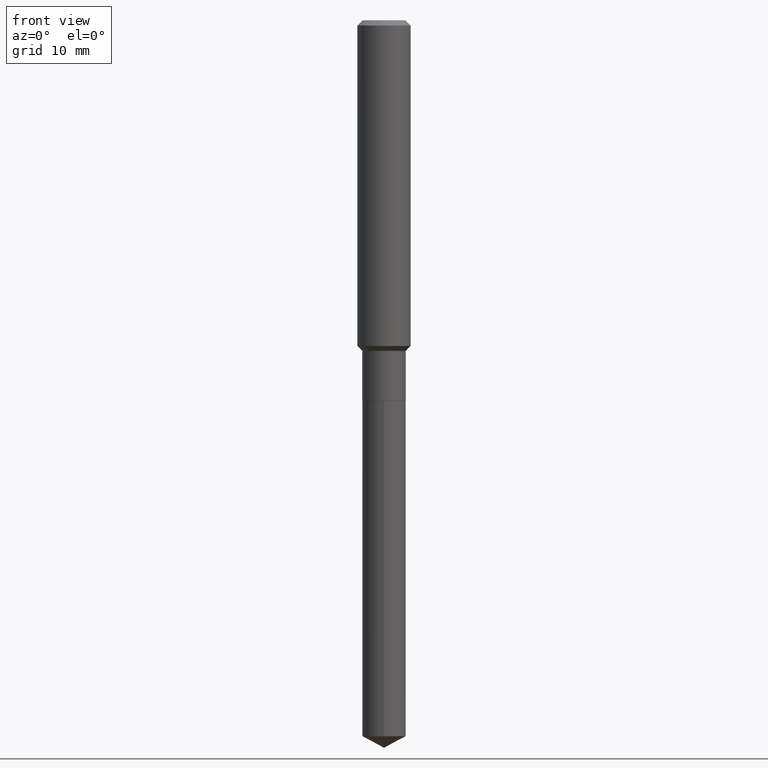
[diagram: clean part render]
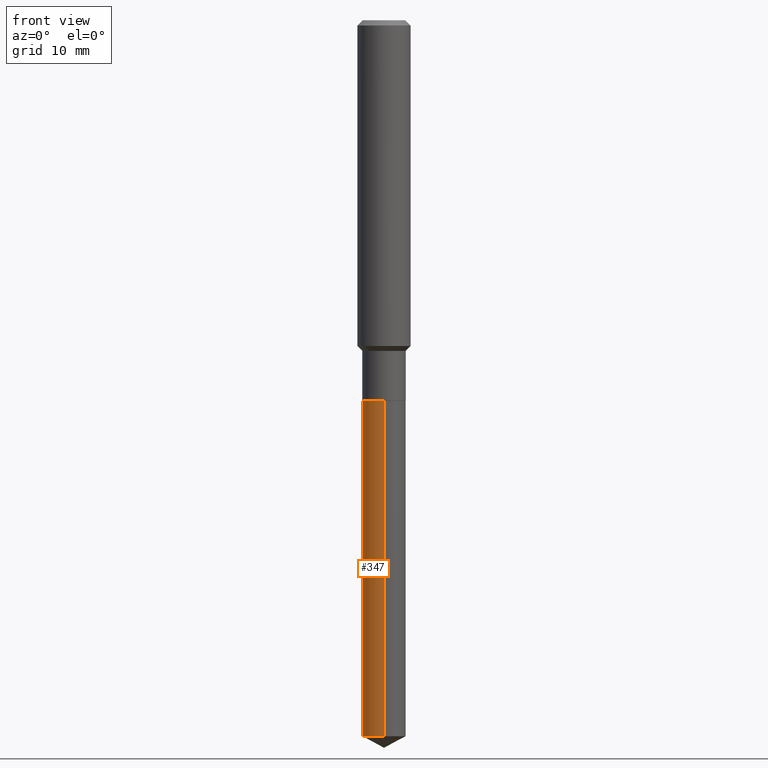
[diagram: same view with one face highlighted and labeled with its STEP entity id]
A machine part, front view. The second image highlights one B-rep face of the part: STEP entity #347.
In plain terms, the highlighted cylindrical surface (edge-blend (fillet) strip) has radius 2.4498 mm, axis along (-0, 0, 1).
Its self-contained STEP definition (entity closure, byte-faithful):
#4 = CARTESIAN_POINT ( 'NONE',  ( -6.735067502627990177E-16, -0.09645000000000587825, -1.688899999999999846 ) ) ;
#14 = DIRECTION ( 'NONE',  ( -2.445459451531945961E-29, 3.491494735238948529E-15, 1.000000000000000000 ) ) ;
#50 = VECTOR ( 'NONE', #148, 39.37007874015748143 ) ;
#69 = LINE ( 'NONE', #335, #104 ) ;
#75 = DIRECTION ( 'NONE',  ( -6.982962677686265133E-15, -1.000000000000000000, 2.832398127179122126E-15 ) ) ;
#84 = CARTESIAN_POINT ( 'NONE',  ( 4.130152266766077627E-29, -5.896762833172189046E-15, -1.688900000000000068 ) ) ;
#104 = VECTOR ( 'NONE', #214, 39.37007874015748143 ) ;
#113 = DIRECTION ( 'NONE',  ( -2.445459451531945961E-29, 3.491494735238948529E-15, 1.000000000000000000 ) ) ;
#114 = DIRECTION ( 'NONE',  ( -6.982962677686265133E-15, -1.000000000000000000, 2.832398127179122126E-15 ) ) ;
#119 = CARTESIAN_POINT ( 'NONE',  ( 6.853184686406942899E-16, 0.09644999999999409601, -1.688900000000000290 ) ) ;
#124 = VERTEX_POINT ( 'NONE', #455 ) ;
#129 = EDGE_CURVE ( 'NONE', #124, #307, #411, .T. ) ;
#134 = EDGE_CURVE ( 'NONE', #381, #305, #69, .T. ) ;
#148 = DIRECTION ( 'NONE',  ( -2.445459451531945961E-29, 3.491494735238948529E-15, 1.000000000000000000 ) ) ;
#153 = CYLINDRICAL_SURFACE ( 'NONE', #235, 0.09644999999999999407 ) ;
#154 = ORIENTED_EDGE ( 'NONE', *, *, #296, .T. ) ;
#183 = CARTESIAN_POINT ( 'NONE',  ( 6.853184686406577065E-16, 0.09644999999999409601, -1.688900000000000290 ) ) ;
#195 = EDGE_LOOP ( 'NONE', ( #429, #154, #355, #471 ) ) ;
#214 = DIRECTION ( 'NONE',  ( -2.445459451531945961E-29, 3.491494735238948529E-15, 1.000000000000000000 ) ) ;
#222 = CARTESIAN_POINT ( 'NONE',  ( -6.735067502627625329E-16, -0.09645000000001105467, -3.177016625316249954 ) ) ;
#229 = FACE_OUTER_BOUND ( 'NONE', #195, .T. ) ;
#235 = AXIS2_PLACEMENT_3D ( 'NONE', #84, #113, #114 ) ;
#257 = EDGE_CURVE ( 'NONE', #307, #305, #428, .T. ) ;
#258 = CARTESIAN_POINT ( 'NONE',  ( 4.130152266766077627E-29, -5.896762833172189046E-15, -1.688900000000000068 ) ) ;
#293 = CIRCLE ( 'NONE', #398, 0.09644999999999999407 ) ;
#296 = EDGE_CURVE ( 'NONE', #124, #381, #293, .T. ) ;
#305 = VERTEX_POINT ( 'NONE', #4 ) ;
#307 = VERTEX_POINT ( 'NONE', #119 ) ;
#335 = CARTESIAN_POINT ( 'NONE',  ( -6.735067502627990177E-16, -0.09645000000000587825, -1.688899999999999846 ) ) ;
#347 = ADVANCED_FACE ( 'NONE', ( #229 ), #153, .T. ) ;
#355 = ORIENTED_EDGE ( 'NONE', *, *, #134, .T. ) ;
#366 = AXIS2_PLACEMENT_3D ( 'NONE', #258, #414, #75 ) ;
#381 = VERTEX_POINT ( 'NONE', #222 ) ;
#398 = AXIS2_PLACEMENT_3D ( 'NONE', #422, #14, #419 ) ;
#411 = LINE ( 'NONE', #183, #50 ) ;
#414 = DIRECTION ( 'NONE',  ( -2.445459451531945961E-29, 3.491494735238948529E-15, 1.000000000000000000 ) ) ;
#419 = DIRECTION ( 'NONE',  ( -6.982962677686265133E-15, -1.000000000000000000, 5.664796254358244252E-15 ) ) ;
#422 = CARTESIAN_POINT ( 'NONE',  ( 7.769281133127524452E-29, -1.109251419588542783E-14, -3.177016625316250398 ) ) ;
#428 = CIRCLE ( 'NONE', #366, 0.09644999999999999407 ) ;
#429 = ORIENTED_EDGE ( 'NONE', *, *, #129, .F. ) ;
#455 = CARTESIAN_POINT ( 'NONE',  ( 6.853184686406937969E-16, 0.09644999999998887796, -3.177016625316251286 ) ) ;
#471 = ORIENTED_EDGE ( 'NONE', *, *, #257, .F. ) ;